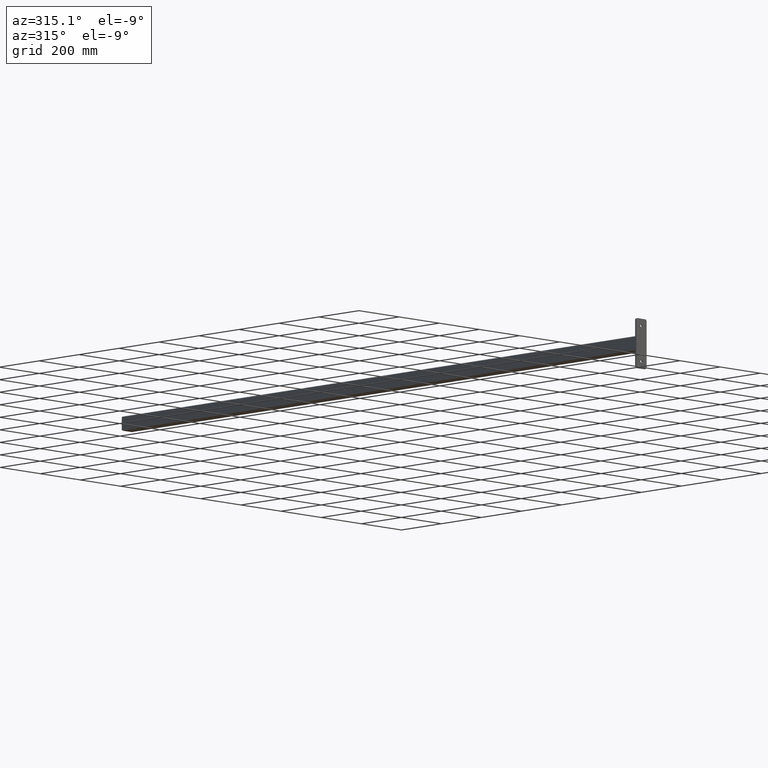
[diagram: clean part render]
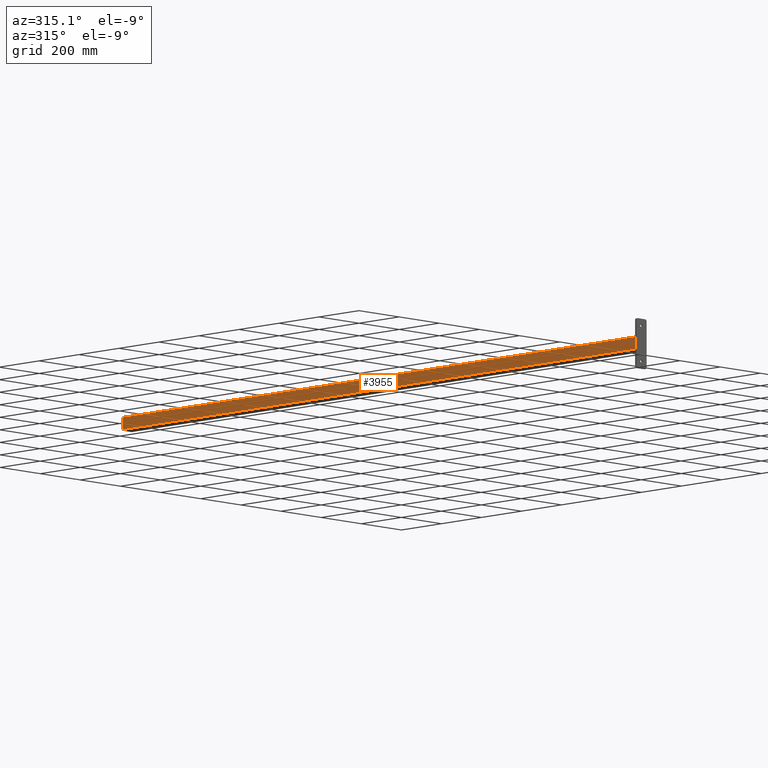
[diagram: same view with one face highlighted and labeled with its STEP entity id]
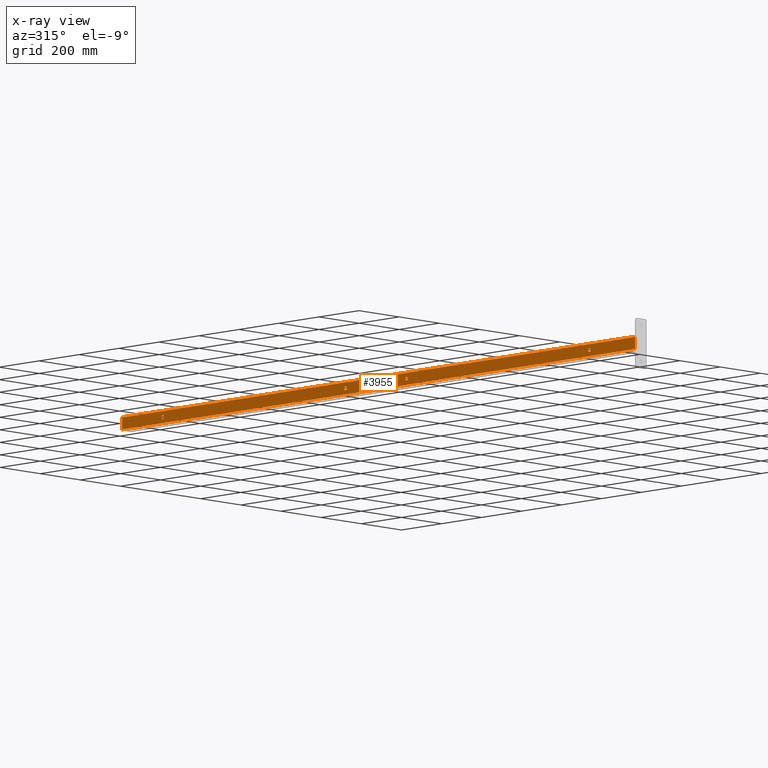
[diagram: x-ray of the same camera — body ghosted, the highlighted face saturated]
A machine part, auxiliary view. The second image highlights one B-rep face of the part: STEP entity #3955.
The next image is the same camera in x-ray: the body ghosted, the highlighted face saturated — about 0% of this face is hidden behind the body in this view.
In plain terms, the highlighted planar face has unit normal (1, 0, 0).
Its self-contained STEP definition (entity closure, byte-faithful):
#21 = ORIENTED_EDGE ( 'NONE', *, *, #2897, .F. ) ;
#60 = AXIS2_PLACEMENT_3D ( 'NONE', #217, #506, #3980 ) ;
#133 = AXIS2_PLACEMENT_3D ( 'NONE', #1443, #2718, #3968 ) ;
#159 = DIRECTION ( 'NONE',  ( 0.000000000000000000, 0.000000000000000000, 1.000000000000000000 ) ) ;
#163 = FACE_BOUND ( 'NONE', #886, .T. ) ;
#179 = VERTEX_POINT ( 'NONE', #203 ) ;
#203 = CARTESIAN_POINT ( 'NONE',  ( 6.735557395310442023E-16, -1.000000000000000000, 5.750000000000001776 ) ) ;
#217 = CARTESIAN_POINT ( 'NONE',  ( -7.960204194457791533E-16, -1.000000000000000000, -6.499999999999996447 ) ) ;
#406 = EDGE_LOOP ( 'NONE', ( #3896, #1918, #3562, #1605 ) ) ;
#423 = CARTESIAN_POINT ( 'NONE',  ( -5.204748896376250896E-15, -1.000000000000000000, -42.50000000000000000 ) ) ;
#445 = VERTEX_POINT ( 'NONE', #2087 ) ;
#498 = VERTEX_POINT ( 'NONE', #3164 ) ;
#506 = DIRECTION ( 'NONE',  ( -0.000000000000000000, -1.000000000000000000, -0.000000000000000000 ) ) ;
#510 = VERTEX_POINT ( 'NONE', #2710 ) ;
#597 = CARTESIAN_POINT ( 'NONE',  ( 5.053918788278887053E-15, -1.000000000000000000, 41.50000000000000000 ) ) ;
#671 = EDGE_CURVE ( 'NONE', #1461, #2278, #1167, .T. ) ;
#851 = EDGE_CURVE ( 'NONE', #1936, #2278, #2652, .T. ) ;
#886 = EDGE_LOOP ( 'NONE', ( #1986 ) ) ;
#992 = DIRECTION ( 'NONE',  ( 1.000000000000000000, 0.000000000000000000, 0.000000000000000000 ) ) ;
#1088 = FACE_BOUND ( 'NONE', #2395, .T. ) ;
#1167 = LINE ( 'NONE', #2456, #3726 ) ;
#1215 = LINE ( 'NONE', #4064, #1713 ) ;
#1269 = VECTOR ( 'NONE', #2889, 39.37007874015748143 ) ;
#1422 = FACE_OUTER_BOUND ( 'NONE', #406, .T. ) ;
#1443 = CARTESIAN_POINT ( 'NONE',  ( -0.8505999999999999117, -1.000000000000000000, 50.50000000000000000 ) ) ;
#1461 = VERTEX_POINT ( 'NONE', #3568 ) ;
#1605 = ORIENTED_EDGE ( 'NONE', *, *, #2630, .T. ) ;
#1713 = VECTOR ( 'NONE', #3485, 39.37007874015748143 ) ;
#1714 = CARTESIAN_POINT ( 'NONE',  ( 0.8505999999999999117, -1.000000000000000000, 50.50000000000000000 ) ) ;
#1768 = CIRCLE ( 'NONE', #3294, 0.2500000000000030531 ) ;
#1836 = CIRCLE ( 'NONE', #60, 0.2499999999999998057 ) ;
#1886 = CARTESIAN_POINT ( 'NONE',  ( 0.8505999999999999117, -1.000000000000000000, -50.50000000000000000 ) ) ;
#1918 = ORIENTED_EDGE ( 'NONE', *, *, #851, .F. ) ;
#1936 = VERTEX_POINT ( 'NONE', #1714 ) ;
#1968 = CIRCLE ( 'NONE', #2103, 0.2500000000000030531 ) ;
#1986 = ORIENTED_EDGE ( 'NONE', *, *, #2415, .F. ) ;
#2000 = DIRECTION ( 'NONE',  ( -0.000000000000000000, -1.000000000000000000, -0.000000000000000000 ) ) ;
#2087 = CARTESIAN_POINT ( 'NONE',  ( -7.960204194457791533E-16, -1.000000000000000000, -6.249999999999997335 ) ) ;
#2103 = AXIS2_PLACEMENT_3D ( 'NONE', #423, #2000, #3277 ) ;
#2128 = DIRECTION ( 'NONE',  ( -0.000000000000000000, -1.000000000000000000, -0.000000000000000000 ) ) ;
#2171 = AXIS2_PLACEMENT_3D ( 'NONE', #3644, #2128, #159 ) ;
#2278 = VERTEX_POINT ( 'NONE', #1886 ) ;
#2395 = EDGE_LOOP ( 'NONE', ( #21 ) ) ;
#2406 = ORIENTED_EDGE ( 'NONE', *, *, #2465, .F. ) ;
#2415 = EDGE_CURVE ( 'NONE', #510, #510, #1968, .T. ) ;
#2456 = CARTESIAN_POINT ( 'NONE',  ( -0.8505999999999999117, -1.000000000000000000, -50.50000000000000000 ) ) ;
#2465 = EDGE_CURVE ( 'NONE', #179, #179, #3826, .T. ) ;
#2630 = EDGE_CURVE ( 'NONE', #498, #1461, #1215, .T. ) ;
#2649 = ORIENTED_EDGE ( 'NONE', *, *, #3563, .F. ) ;
#2652 = LINE ( 'NONE', #2930, #1269 ) ;
#2688 = CARTESIAN_POINT ( 'NONE',  ( -0.8505999999999999117, -1.000000000000000000, 50.50000000000000000 ) ) ;
#2695 = PLANE ( 'NONE',  #133 ) ;
#2710 = CARTESIAN_POINT ( 'NONE',  ( -5.204748896376250896E-15, -1.000000000000000000, -42.24999999999999289 ) ) ;
#2714 = EDGE_LOOP ( 'NONE', ( #2406 ) ) ;
#2718 = DIRECTION ( 'NONE',  ( 0.000000000000000000, 1.000000000000000000, 0.000000000000000000 ) ) ;
#2720 = EDGE_LOOP ( 'NONE', ( #2649 ) ) ;
#2889 = DIRECTION ( 'NONE',  ( -0.000000000000000000, -0.000000000000000000, -1.000000000000000000 ) ) ;
#2897 = EDGE_CURVE ( 'NONE', #4004, #4004, #1768, .T. ) ;
#2930 = CARTESIAN_POINT ( 'NONE',  ( 0.8505999999999999117, -1.000000000000000000, 50.50000000000000000 ) ) ;
#2999 = FACE_BOUND ( 'NONE', #2720, .T. ) ;
#3045 = DIRECTION ( 'NONE',  ( 0.000000000000000000, 0.000000000000000000, 1.000000000000000000 ) ) ;
#3164 = CARTESIAN_POINT ( 'NONE',  ( -0.8505999999999999117, -1.000000000000000000, 50.50000000000000000 ) ) ;
#3277 = DIRECTION ( 'NONE',  ( 0.000000000000000000, 0.000000000000000000, 1.000000000000000000 ) ) ;
#3294 = AXIS2_PLACEMENT_3D ( 'NONE', #597, #3437, #3045 ) ;
#3437 = DIRECTION ( 'NONE',  ( -0.000000000000000000, -1.000000000000000000, -0.000000000000000000 ) ) ;
#3485 = DIRECTION ( 'NONE',  ( -0.000000000000000000, -0.000000000000000000, -1.000000000000000000 ) ) ;
#3540 = EDGE_CURVE ( 'NONE', #498, #1936, #3872, .T. ) ;
#3562 = ORIENTED_EDGE ( 'NONE', *, *, #3540, .F. ) ;
#3563 = EDGE_CURVE ( 'NONE', #445, #445, #1836, .T. ) ;
#3568 = CARTESIAN_POINT ( 'NONE',  ( -0.8505999999999999117, -1.000000000000000000, -50.50000000000000000 ) ) ;
#3602 = CARTESIAN_POINT ( 'NONE',  ( 5.053918788278887053E-15, -1.000000000000000000, 41.75000000000000711 ) ) ;
#3626 = FACE_BOUND ( 'NONE', #2714, .T. ) ;
#3639 = VECTOR ( 'NONE', #992, 39.37007874015748143 ) ;
#3644 = CARTESIAN_POINT ( 'NONE',  ( 6.735557395310442023E-16, -1.000000000000000000, 5.500000000000001776 ) ) ;
#3726 = VECTOR ( 'NONE', #3812, 39.37007874015748143 ) ;
#3812 = DIRECTION ( 'NONE',  ( 1.000000000000000000, 0.000000000000000000, 0.000000000000000000 ) ) ;
#3826 = CIRCLE ( 'NONE', #2171, 0.2499999999999998057 ) ;
#3872 = LINE ( 'NONE', #2688, #3639 ) ;
#3896 = ORIENTED_EDGE ( 'NONE', *, *, #671, .T. ) ;
#3955 = ADVANCED_FACE ( 'NONE', ( #1088, #3626, #2999, #163, #1422 ), #2695, .F. ) ;
#3968 = DIRECTION ( 'NONE',  ( 0.000000000000000000, -0.000000000000000000, 1.000000000000000000 ) ) ;
#3980 = DIRECTION ( 'NONE',  ( 0.000000000000000000, 0.000000000000000000, 1.000000000000000000 ) ) ;
#4004 = VERTEX_POINT ( 'NONE', #3602 ) ;
#4064 = CARTESIAN_POINT ( 'NONE',  ( -0.8505999999999999117, -1.000000000000000000, 50.50000000000000000 ) ) ;